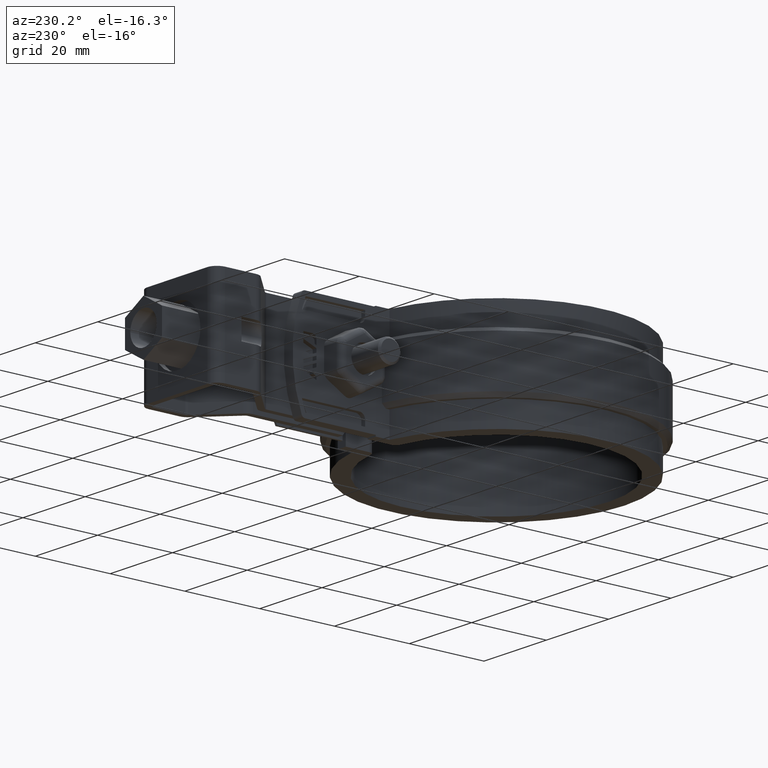
[diagram: clean part render]
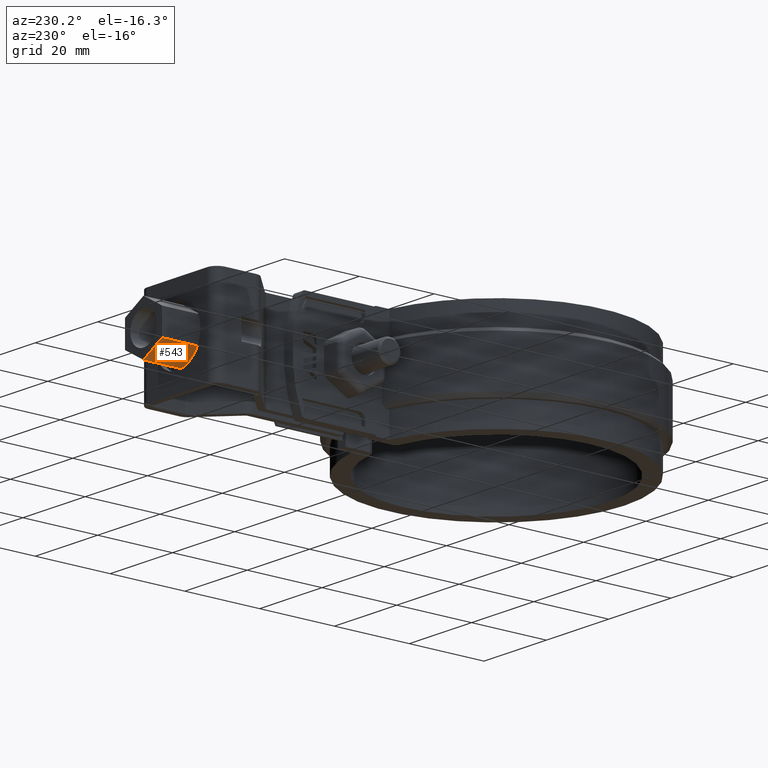
[diagram: same view with one face highlighted and labeled with its STEP entity id]
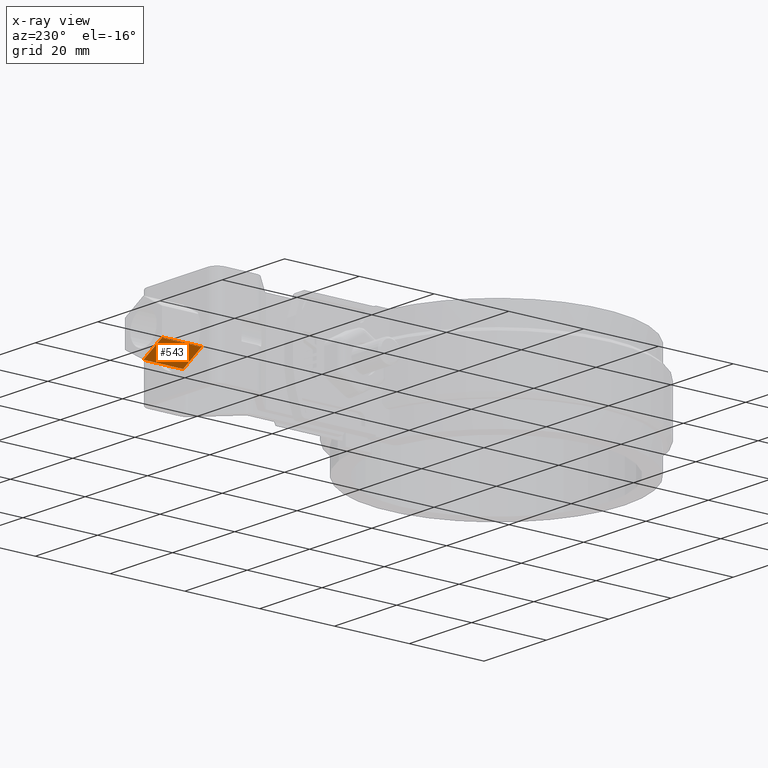
[diagram: x-ray of the same camera — body ghosted, the highlighted face saturated]
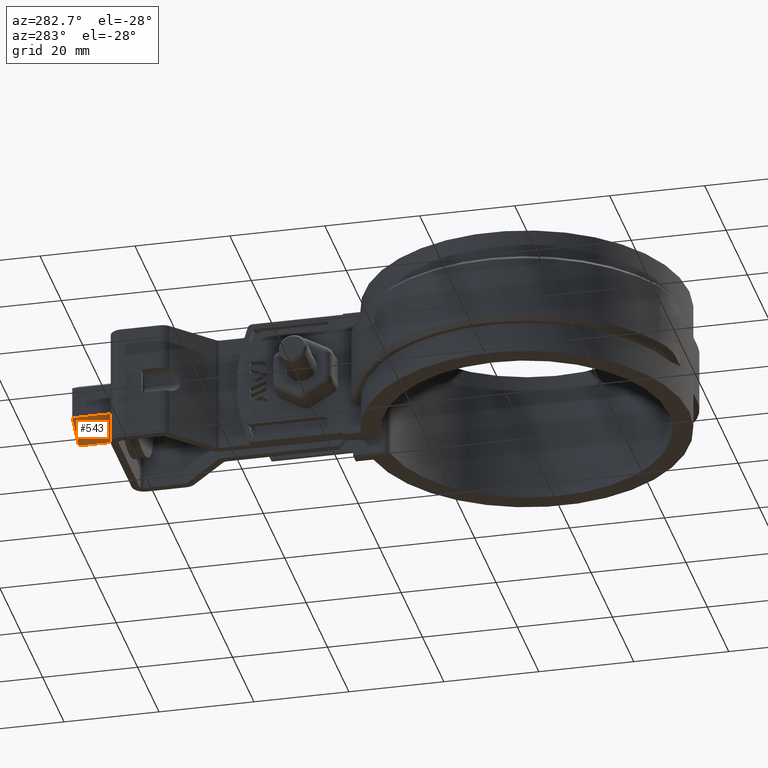
[diagram: same view with one face highlighted and labeled with its STEP entity id]
A machine part, auxiliary view. The second image highlights one B-rep face of the part: STEP entity #543.
The next image is the same camera in x-ray: the body ghosted, the highlighted face saturated — about 0% of this face is hidden behind the body in this view.
A second angle (auxiliary view) of the same face is appended — the face is thin or edge-on in the first view.
In plain terms, the highlighted planar face has unit normal (0.5, 0, 0.866).
Its self-contained STEP definition (entity closure, byte-faithful):
#543 = ADVANCED_FACE( '', ( #1090 ), #1091, .F. );
#1090 = FACE_OUTER_BOUND( '', #2348, .T. );
#1091 = PLANE( '', #2349 );
#2348 = EDGE_LOOP( '', ( #5261, #5262, #5263, #5264 ) );
#2349 = AXIS2_PLACEMENT_3D( '', #5265, #5266, #5267 );
#5261 = ORIENTED_EDGE( '', *, *, #7092, .T. );
#5262 = ORIENTED_EDGE( '', *, *, #7096, .F. );
#5263 = ORIENTED_EDGE( '', *, *, #7097, .F. );
#5264 = ORIENTED_EDGE( '', *, *, #7094, .T. );
#5265 = CARTESIAN_POINT( '', ( -5.28761461339486E-011, 94.4015111810400, -19.3704682128869 ) );
#5266 = DIRECTION( '', ( 0.500000000000341, 5.51919800101110E-011, 0.866025403784242 ) );
#5267 = DIRECTION( '', ( 0.866025403784242, -3.17616447648474E-011, -0.500000000000341 ) );
#7092 = EDGE_CURVE( '', #8370, #8368, #8371, .T. );
#7094 = EDGE_CURVE( '', #8373, #8370, #8374, .T. );
#7096 = EDGE_CURVE( '', #8376, #8368, #8377, .T. );
#7097 = EDGE_CURVE( '', #8373, #8376, #8378, .T. );
#8368 = VERTEX_POINT( '', #12156 );
#8370 = VERTEX_POINT( '', #12159 );
#8371 = LINE( '', #12160, #12161 );
#8373 = VERTEX_POINT( '', #12164 );
#8374 = LINE( '', #12165, #12166 );
#8376 = VERTEX_POINT( '', #12169 );
#8377 = LINE( '', #12170, #12171 );
#8378 = LINE( '', #12172, #12173 );
#12156 = CARTESIAN_POINT( '', ( -5.95000000005058, 83.8015111812582, -15.9352341105312 ) );
#12159 = CARTESIAN_POINT( '', ( -5.19281338663207E-011, 83.8015111810400, -19.3704682122119 ) );
#12160 = CARTESIAN_POINT( '', ( -5.19263991428447E-011, 83.8015111810400, -19.3704682122119 ) );
#12161 = VECTOR( '', #13941, 1000.00000000000 );
#12164 = CARTESIAN_POINT( '', ( -5.28778808574246E-011, 94.4015111810400, -19.3704682128869 ) );
#12165 = CARTESIAN_POINT( '', ( -5.28778808574246E-011, 94.4015111810400, -19.3704682128869 ) );
#12166 = VECTOR( '', #13943, 1000.00000000000 );
#12169 = CARTESIAN_POINT( '', ( -5.95000000005152, 94.4015111812582, -15.9352341112062 ) );
#12170 = CARTESIAN_POINT( '', ( -5.95000000005152, 94.4015111812582, -15.9352341112062 ) );
#12171 = VECTOR( '', #13945, 1000.00000000000 );
#12172 = CARTESIAN_POINT( '', ( -5.28761461339486E-011, 94.4015111810400, -19.3704682128869 ) );
#12173 = VECTOR( '', #13946, 1000.00000000000 );
#13941 = DIRECTION( '', ( -0.866025403784242, 3.17616447648474E-011, 0.500000000000341 ) );
#13943 = DIRECTION( '', ( 8.95987727456561E-014, -1.00000000000000, 6.36784791563427E-011 ) );
#13945 = DIRECTION( '', ( 8.95987727456561E-014, -1.00000000000000, 6.36784791563427E-011 ) );
#13946 = DIRECTION( '', ( -0.866025403784242, 3.17616447648474E-011, 0.500000000000341 ) );